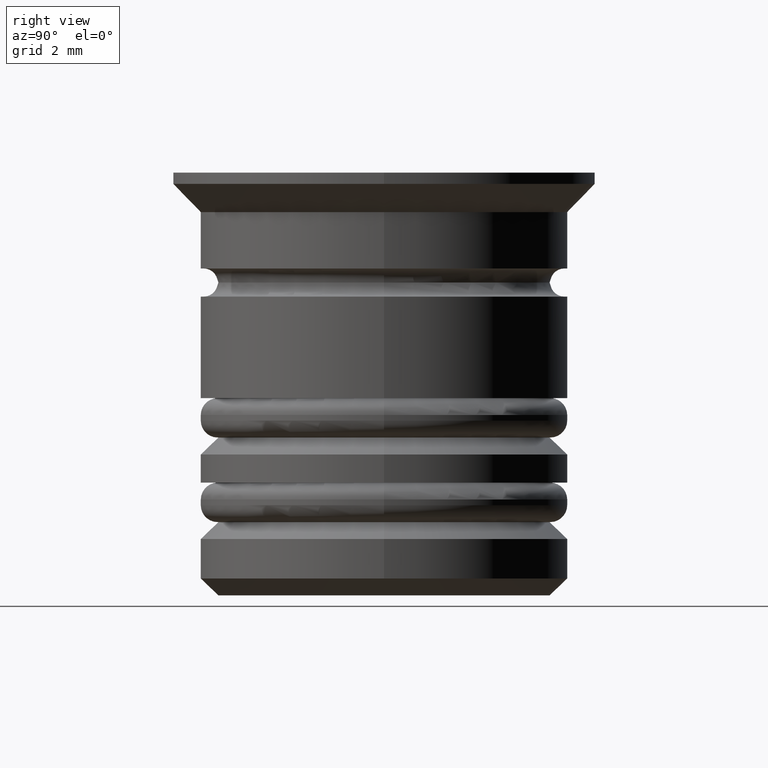
[diagram: clean part render]
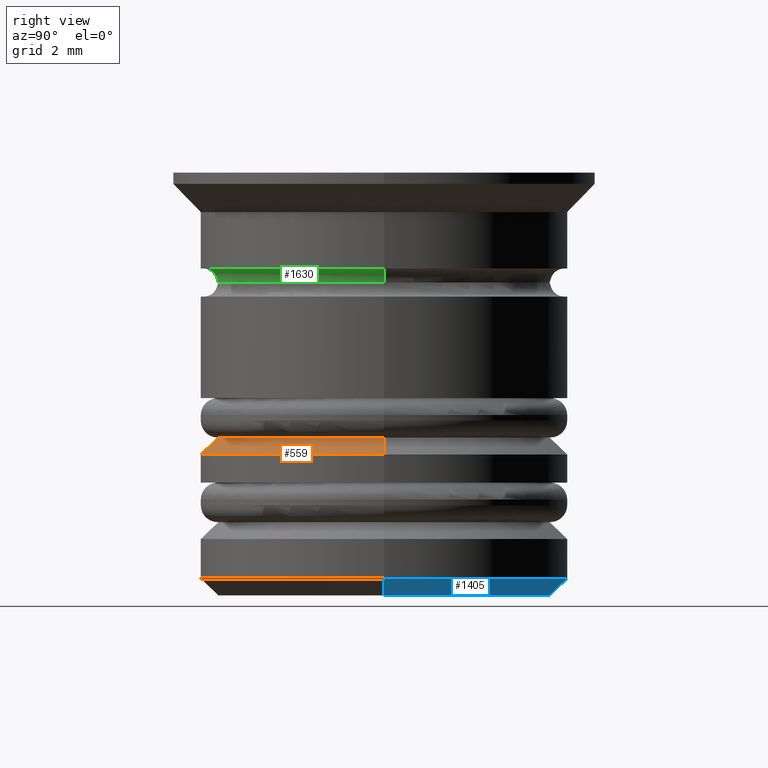
[diagram: same view with three faces highlighted in distinct colors, each labeled with its STEP entity id]
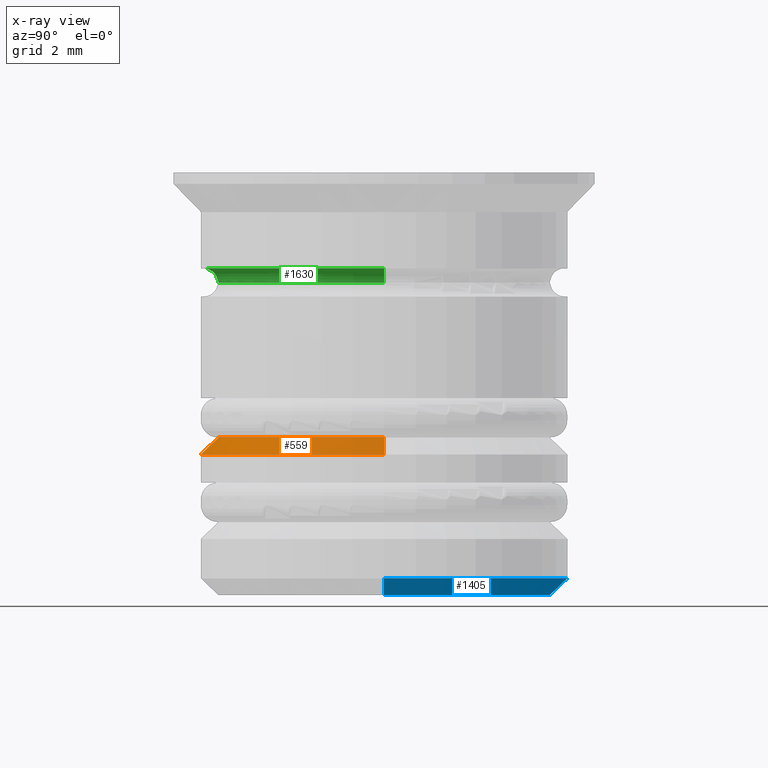
[diagram: x-ray of the same camera — body ghosted, the three highlighted faces saturated]
A machine part, right view with three faces highlighted in distinct colors.
The next image is the same camera in x-ray (body ghosted, the three faces saturated) — at least one of them is partly hidden behind the body in this view.
Their STEP definitions:

[orange] entity #559 — the highlighted conical surface has half-angle 45 deg.
#66 = DIRECTION ( 'NONE',  ( 0.7071067811865507924, 8.659560562354974766E-17, -0.7071067811865441310 ) ) ;
#109 = EDGE_LOOP ( 'NONE', ( #1183, #1602, #1130, #284 ) ) ;
#162 = EDGE_CURVE ( 'NONE', #1445, #1344, #1046, .T. ) ;
#167 = AXIS2_PLACEMENT_3D ( 'NONE', #368, #242, #1221 ) ;
#168 = VECTOR ( 'NONE', #1739, 1000.000000000000000 ) ;
#242 = DIRECTION ( 'NONE',  ( 0.000000000000000000, 0.000000000000000000, -1.000000000000000000 ) ) ;
#284 = ORIENTED_EDGE ( 'NONE', *, *, #742, .F. ) ;
#296 = VERTEX_POINT ( 'NONE', #1785 ) ;
#298 = DIRECTION ( 'NONE',  ( -0.000000000000000000, -0.000000000000000000, 1.000000000000000000 ) ) ;
#352 = DIRECTION ( 'NONE',  ( -1.000000000000000000, 0.000000000000000000, 0.000000000000000000 ) ) ;
#368 = CARTESIAN_POINT ( 'NONE',  ( 0.000000000000000000, 0.000000000000000000, -5.000000000000002665 ) ) ;
#466 = VECTOR ( 'NONE', #66, 1000.000000000000000 ) ;
#551 = CARTESIAN_POINT ( 'NONE',  ( 3.250000000000000444, 0.000000000000000000, -5.000000000000002665 ) ) ;
#559 = ADVANCED_FACE ( 'NONE', ( #1198 ), #1022, .T. ) ;
#630 = DIRECTION ( 'NONE',  ( 0.000000000000000000, 0.000000000000000000, -1.000000000000000000 ) ) ;
#656 = CIRCLE ( 'NONE', #1026, 2.950000000000000178 ) ;
#742 = EDGE_CURVE ( 'NONE', #1344, #1539, #939, .T. ) ;
#939 = CIRCLE ( 'NONE', #167, 3.250000000000000444 ) ;
#1022 = CONICAL_SURFACE ( 'NONE', #1765, 2.749999999999991562, 0.7853981633974530530 ) ;
#1025 = EDGE_CURVE ( 'NONE', #296, #1539, #1748, .T. ) ;
#1026 = AXIS2_PLACEMENT_3D ( 'NONE', #1411, #298, #1825 ) ;
#1046 = LINE ( 'NONE', #1446, #466 ) ;
#1130 = ORIENTED_EDGE ( 'NONE', *, *, #1025, .T. ) ;
#1162 = CARTESIAN_POINT ( 'NONE',  ( 2.950000000000000178, 0.000000000000000000, -4.700000000000005507 ) ) ;
#1172 = EDGE_CURVE ( 'NONE', #296, #1445, #656, .T. ) ;
#1183 = ORIENTED_EDGE ( 'NONE', *, *, #162, .F. ) ;
#1198 = FACE_OUTER_BOUND ( 'NONE', #109, .T. ) ;
#1221 = DIRECTION ( 'NONE',  ( 1.000000000000000000, 0.000000000000000000, 0.000000000000000000 ) ) ;
#1268 = CARTESIAN_POINT ( 'NONE',  ( -3.250000000000000444, 3.980102097228898231E-16, -5.000000000000002665 ) ) ;
#1344 = VERTEX_POINT ( 'NONE', #551 ) ;
#1411 = CARTESIAN_POINT ( 'NONE',  ( 0.000000000000000000, 0.000000000000000000, -4.700000000000005507 ) ) ;
#1445 = VERTEX_POINT ( 'NONE', #1162 ) ;
#1446 = CARTESIAN_POINT ( 'NONE',  ( 2.749999999999991562, 3.367778697655211151E-16, -4.499999999999999112 ) ) ;
#1448 = CARTESIAN_POINT ( 'NONE',  ( -2.749999999999991562, 0.000000000000000000, -4.499999999999999112 ) ) ;
#1467 = CARTESIAN_POINT ( 'NONE',  ( 0.000000000000000000, 0.000000000000000000, -4.499999999999999112 ) ) ;
#1539 = VERTEX_POINT ( 'NONE', #1268 ) ;
#1602 = ORIENTED_EDGE ( 'NONE', *, *, #1172, .F. ) ;
#1739 = DIRECTION ( 'NONE',  ( -0.7071067811865507924, 0.000000000000000000, -0.7071067811865441310 ) ) ;
#1748 = LINE ( 'NONE', #1448, #168 ) ;
#1765 = AXIS2_PLACEMENT_3D ( 'NONE', #1467, #630, #352 ) ;
#1785 = CARTESIAN_POINT ( 'NONE',  ( -2.950000000000000178, 3.612708057484692097E-16, -4.700000000000005507 ) ) ;
#1825 = DIRECTION ( 'NONE',  ( -1.000000000000000000, 0.000000000000000000, 0.000000000000000000 ) ) ;

[blue] entity #1405 — the highlighted conical surface has half-angle 45 deg.
#124 = CARTESIAN_POINT ( 'NONE',  ( -3.250000000000000444, 3.980102097228898231E-16, -7.200000000000004619 ) ) ;
#161 = FACE_OUTER_BOUND ( 'NONE', #782, .T. ) ;
#164 = AXIS2_PLACEMENT_3D ( 'NONE', #1707, #1009, #1023 ) ;
#211 = VERTEX_POINT ( 'NONE', #1065 ) ;
#246 = ORIENTED_EDGE ( 'NONE', *, *, #815, .T. ) ;
#384 = CIRCLE ( 'NONE', #1646, 2.950000000000004619 ) ;
#406 = LINE ( 'NONE', #124, #880 ) ;
#452 = CARTESIAN_POINT ( 'NONE',  ( 3.250000000000000444, 0.000000000000000000, -7.200000000000004619 ) ) ;
#463 = EDGE_CURVE ( 'NONE', #902, #1027, #1219, .T. ) ;
#493 = ORIENTED_EDGE ( 'NONE', *, *, #1214, .F. ) ;
#501 = ORIENTED_EDGE ( 'NONE', *, *, #463, .F. ) ;
#576 = CARTESIAN_POINT ( 'NONE',  ( 3.250000000000000444, 0.000000000000000000, -7.200000000000004619 ) ) ;
#582 = DIRECTION ( 'NONE',  ( 0.7071067811865486830, 0.000000000000000000, 0.7071067811865464625 ) ) ;
#763 = AXIS2_PLACEMENT_3D ( 'NONE', #863, #1120, #1714 ) ;
#772 = CARTESIAN_POINT ( 'NONE',  ( -3.250000000000000444, 3.980102097228898231E-16, -7.200000000000004619 ) ) ;
#782 = EDGE_LOOP ( 'NONE', ( #899, #246, #501, #493 ) ) ;
#815 = EDGE_CURVE ( 'NONE', #1661, #1027, #406, .T. ) ;
#863 = CARTESIAN_POINT ( 'NONE',  ( 0.000000000000000000, 0.000000000000000000, -7.200000000000004619 ) ) ;
#880 = VECTOR ( 'NONE', #1530, 999.9999999999998863 ) ;
#899 = ORIENTED_EDGE ( 'NONE', *, *, #935, .F. ) ;
#902 = VERTEX_POINT ( 'NONE', #452 ) ;
#935 = EDGE_CURVE ( 'NONE', #1661, #211, #384, .T. ) ;
#953 = CARTESIAN_POINT ( 'NONE',  ( 0.000000000000000000, 0.000000000000000000, -7.500000000000000000 ) ) ;
#964 = CARTESIAN_POINT ( 'NONE',  ( -2.950000000000004619, 3.796405077356797876E-16, -7.500000000000000000 ) ) ;
#1009 = DIRECTION ( 'NONE',  ( -0.000000000000000000, -0.000000000000000000, 1.000000000000000000 ) ) ;
#1023 = DIRECTION ( 'NONE',  ( 1.000000000000000000, 0.000000000000000000, 0.000000000000000000 ) ) ;
#1027 = VERTEX_POINT ( 'NONE', #772 ) ;
#1065 = CARTESIAN_POINT ( 'NONE',  ( 2.950000000000004619, 0.000000000000000000, -7.500000000000000000 ) ) ;
#1120 = DIRECTION ( 'NONE',  ( -0.000000000000000000, -0.000000000000000000, 1.000000000000000000 ) ) ;
#1214 = EDGE_CURVE ( 'NONE', #211, #902, #1690, .T. ) ;
#1219 = CIRCLE ( 'NONE', #763, 3.250000000000000444 ) ;
#1405 = ADVANCED_FACE ( 'NONE', ( #161 ), #1406, .T. ) ;
#1406 = CONICAL_SURFACE ( 'NONE', #164, 3.250000000000000444, 0.7853981633974498333 ) ;
#1506 = DIRECTION ( 'NONE',  ( 0.000000000000000000, 0.000000000000000000, -1.000000000000000000 ) ) ;
#1530 = DIRECTION ( 'NONE',  ( -0.7071067811865486830, 8.659560562354947649E-17, 0.7071067811865464625 ) ) ;
#1641 = DIRECTION ( 'NONE',  ( -1.000000000000000000, 0.000000000000000000, 0.000000000000000000 ) ) ;
#1646 = AXIS2_PLACEMENT_3D ( 'NONE', #953, #1506, #1641 ) ;
#1661 = VERTEX_POINT ( 'NONE', #964 ) ;
#1676 = VECTOR ( 'NONE', #582, 999.9999999999998863 ) ;
#1690 = LINE ( 'NONE', #576, #1676 ) ;
#1707 = CARTESIAN_POINT ( 'NONE',  ( 0.000000000000000000, 0.000000000000000000, -7.200000000000004619 ) ) ;
#1714 = DIRECTION ( 'NONE',  ( -1.000000000000000000, 0.000000000000000000, 0.000000000000000000 ) ) ;

[green] entity #1630 — the highlighted toroidal blend (fillet) surface has major radius 3.2 mm and minor (blend) radius 0.25 mm.
#24 = AXIS2_PLACEMENT_3D ( 'NONE', #221, #90, #533 ) ;
#90 = DIRECTION ( 'NONE',  ( 0.000000000000000000, -1.000000000000000000, 0.000000000000000000 ) ) ;
#190 = AXIS2_PLACEMENT_3D ( 'NONE', #489, #510, #217 ) ;
#200 = EDGE_CURVE ( 'NONE', #867, #907, #876, .T. ) ;
#215 = CARTESIAN_POINT ( 'NONE',  ( -3.200000000000000178, 3.918869757271530460E-16, -1.700000000000000178 ) ) ;
#217 = DIRECTION ( 'NONE',  ( -1.000000000000000000, 1.224646799147353454E-16, 0.000000000000000000 ) ) ;
#221 = CARTESIAN_POINT ( 'NONE',  ( 3.200000000000000178, 0.000000000000000000, -1.949999999999999956 ) ) ;
#264 = ORIENTED_EDGE ( 'NONE', *, *, #200, .T. ) ;
#313 = CIRCLE ( 'NONE', #1673, 3.200000000000000178 ) ;
#320 = EDGE_CURVE ( 'NONE', #907, #1150, #734, .T. ) ;
#335 = DIRECTION ( 'NONE',  ( 1.000000000000000000, 0.000000000000000000, 0.000000000000000000 ) ) ;
#382 = AXIS2_PLACEMENT_3D ( 'NONE', #813, #1210, #1496 ) ;
#489 = CARTESIAN_POINT ( 'NONE',  ( -3.200000000000000178, 3.918869757271530460E-16, -1.949999999999999956 ) ) ;
#510 = DIRECTION ( 'NONE',  ( 1.224646799147353207E-16, 1.000000000000000000, 0.000000000000000000 ) ) ;
#533 = DIRECTION ( 'NONE',  ( 0.000000000000000000, 0.000000000000000000, -1.000000000000000000 ) ) ;
#677 = CARTESIAN_POINT ( 'NONE',  ( -2.950000000000000178, 3.612708057484692097E-16, -1.949999999999999956 ) ) ;
#734 = CIRCLE ( 'NONE', #1242, 2.950000000000000178 ) ;
#809 = CARTESIAN_POINT ( 'NONE',  ( 0.000000000000000000, 0.000000000000000000, -1.949999999999999956 ) ) ;
#813 = CARTESIAN_POINT ( 'NONE',  ( 0.000000000000000000, 0.000000000000000000, -1.949999999999999956 ) ) ;
#848 = EDGE_CURVE ( 'NONE', #867, #1351, #313, .T. ) ;
#867 = VERTEX_POINT ( 'NONE', #215 ) ;
#876 = CIRCLE ( 'NONE', #190, 0.2499999999999997780 ) ;
#907 = VERTEX_POINT ( 'NONE', #677 ) ;
#1104 = DIRECTION ( 'NONE',  ( 1.000000000000000000, 0.000000000000000000, 0.000000000000000000 ) ) ;
#1128 = EDGE_CURVE ( 'NONE', #1351, #1150, #1377, .T. ) ;
#1150 = VERTEX_POINT ( 'NONE', #1393 ) ;
#1210 = DIRECTION ( 'NONE',  ( -0.000000000000000000, -0.000000000000000000, 1.000000000000000000 ) ) ;
#1212 = ORIENTED_EDGE ( 'NONE', *, *, #848, .F. ) ;
#1227 = DIRECTION ( 'NONE',  ( -0.000000000000000000, -0.000000000000000000, 1.000000000000000000 ) ) ;
#1242 = AXIS2_PLACEMENT_3D ( 'NONE', #809, #1227, #1104 ) ;
#1351 = VERTEX_POINT ( 'NONE', #1529 ) ;
#1377 = CIRCLE ( 'NONE', #24, 0.2499999999999997780 ) ;
#1393 = CARTESIAN_POINT ( 'NONE',  ( 2.950000000000000178, 0.000000000000000000, -1.949999999999999956 ) ) ;
#1410 = CARTESIAN_POINT ( 'NONE',  ( 0.000000000000000000, 0.000000000000000000, -1.700000000000000178 ) ) ;
#1468 = DIRECTION ( 'NONE',  ( -0.000000000000000000, -0.000000000000000000, 1.000000000000000000 ) ) ;
#1496 = DIRECTION ( 'NONE',  ( 1.000000000000000000, 0.000000000000000000, 0.000000000000000000 ) ) ;
#1517 = TOROIDAL_SURFACE ( 'NONE', #382, 3.200000000000000178, 0.2499999999999997780 ) ;
#1529 = CARTESIAN_POINT ( 'NONE',  ( 3.200000000000000178, 0.000000000000000000, -1.700000000000000178 ) ) ;
#1566 = ORIENTED_EDGE ( 'NONE', *, *, #1128, .F. ) ;
#1630 = ADVANCED_FACE ( 'NONE', ( #1665 ), #1517, .F. ) ;
#1665 = FACE_OUTER_BOUND ( 'NONE', #1771, .T. ) ;
#1673 = AXIS2_PLACEMENT_3D ( 'NONE', #1410, #1468, #335 ) ;
#1757 = ORIENTED_EDGE ( 'NONE', *, *, #320, .T. ) ;
#1771 = EDGE_LOOP ( 'NONE', ( #264, #1757, #1566, #1212 ) ) ;